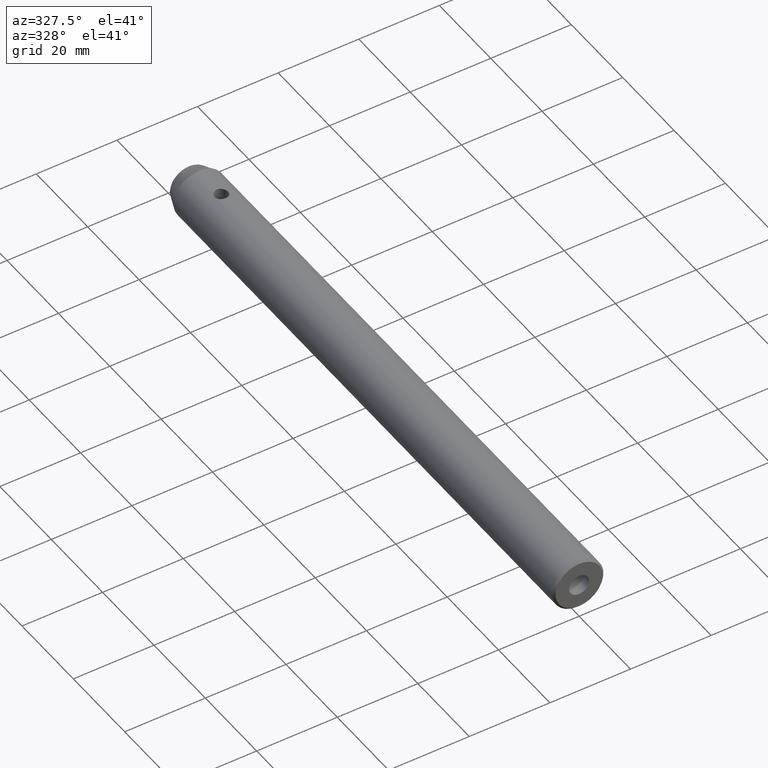
[diagram: clean part render]
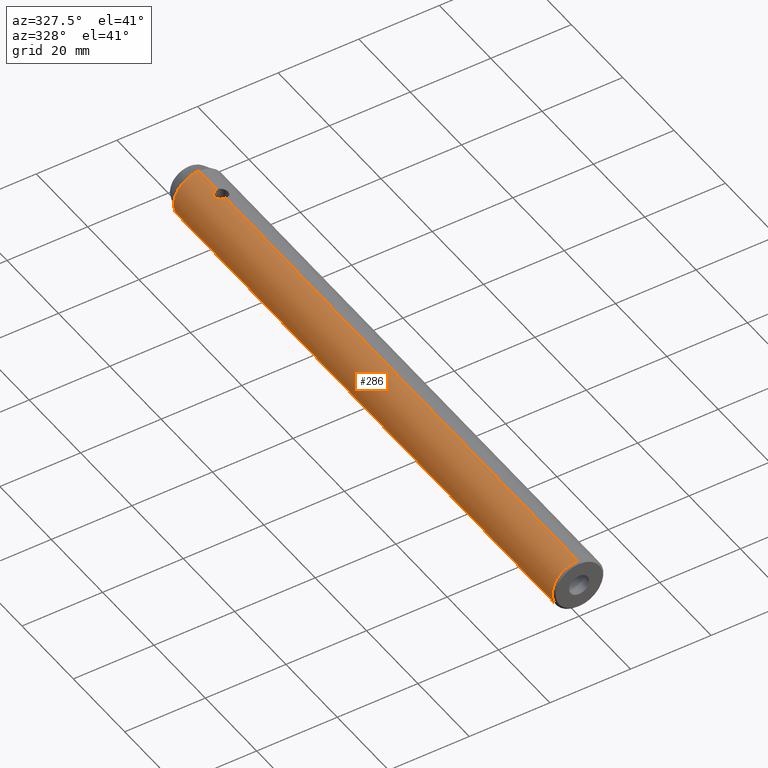
[diagram: same view with one face highlighted and labeled with its STEP entity id]
A machine part, auxiliary view. The second image highlights one B-rep face of the part: STEP entity #286.
In plain terms, the highlighted cylindrical surface (edge-blend (fillet) strip) has radius 6.35 mm, axis along (-0, -1, -0).
Its self-contained STEP definition (entity closure, byte-faithful):
#1 = DIRECTION ( 'NONE',  ( -0.0000000000000000000, -1.000000000000000000, -0.0000000000000000000 ) ) ;
#15 = CARTESIAN_POINT ( 'NONE',  ( -1.650000000000003200, 139.5159074412738400, 6.131883886702358800 ) ) ;
#20 = CARTESIAN_POINT ( 'NONE',  ( -6.974444811417583500E-013, 137.6499999999935300, 6.350000000001686300 ) ) ;
#35 = ORIENTED_EDGE ( 'NONE', *, *, #266, .T. ) ;
#37 = CARTESIAN_POINT ( 'NONE',  ( 7.776507174585692200E-016, 152.0000000000000000, 6.349999999999999600 ) ) ;
#42 = CARTESIAN_POINT ( 'NONE',  ( -1.650000000000003000, 139.1920627159405200, 6.131883886702356200 ) ) ;
#47 = CARTESIAN_POINT ( 'NONE',  ( 7.776507174597243100E-016, 0.4999999999999726900, -6.350000000009431200 ) ) ;
#49 = CARTESIAN_POINT ( 'NONE',  ( -0.8281761633611045600, 140.7311634706439600, -6.296412476666372300 ) ) ;
#50 = EDGE_CURVE ( 'NONE', #493, #484, #801, .T. ) ;
#64 = CARTESIAN_POINT ( 'NONE',  ( -1.007005038130155600, 137.9885294865501400, -6.270292001546161800 ) ) ;
#76 = CARTESIAN_POINT ( 'NONE',  ( -1.482631616215294800, 140.0320397076817200, 6.174634385605513000 ) ) ;
#89 = CARTESIAN_POINT ( 'NONE',  ( -0.1081261642684567500, 137.6500000000001500, 6.349999999999978300 ) ) ;
#91 = LINE ( 'NONE', #124, #613 ) ;
#94 = CARTESIAN_POINT ( 'NONE',  ( -0.2179758374209905000, 137.6608947551608000, 6.347144642644349400 ) ) ;
#95 = CARTESIAN_POINT ( 'NONE',  ( -0.5338866542031250900, 140.8649781437913200, -6.328311955744354100 ) ) ;
#99 = ORIENTED_EDGE ( 'NONE', *, *, #607, .T. ) ;
#108 = CARTESIAN_POINT ( 'NONE',  ( 0.0000000000000000000, 140.9500000000000200, -6.349999999999999600 ) ) ;
#109 = CARTESIAN_POINT ( 'NONE',  ( -1.596663809953354100, 138.8699863015438300, 6.146027032909197300 ) ) ;
#111 = LINE ( 'NONE', #566, #795 ) ;
#113 = ORIENTED_EDGE ( 'NONE', *, *, #281, .T. ) ;
#123 = CARTESIAN_POINT ( 'NONE',  ( -1.639106060326593700, 139.0820324534507800, -6.134844145553196300 ) ) ;
#124 = CARTESIAN_POINT ( 'NONE',  ( 0.0000000000000000000, 152.0000000000000000, -6.349999999999999600 ) ) ;
#126 = CARTESIAN_POINT ( 'NONE',  ( -0.1079389430111871400, 137.6500000000000600, -6.349999999999999600 ) ) ;
#137 = CARTESIAN_POINT ( 'NONE',  ( -1.430937917797910700, 140.1285587685285600, 6.186976712326952600 ) ) ;
#138 = CARTESIAN_POINT ( 'NONE',  ( 7.294888503011075700E-016, 140.9500000000000200, 6.350000000000000500 ) ) ;
#145 = CARTESIAN_POINT ( 'NONE',  ( 2.477007465175872600E-021, 137.6500000000000100, -6.349999999999999600 ) ) ;
#154 = CARTESIAN_POINT ( 'NONE',  ( 0.0000000000000000000, 147.9999999999999100, 0.0000000000000000000 ) ) ;
#156 = CARTESIAN_POINT ( 'NONE',  ( -1.091608024218053900, 140.5419239163841500, -6.255943415907575300 ) ) ;
#161 = CARTESIAN_POINT ( 'NONE',  ( -1.650000000000002800, 139.3000000000000100, 6.131883886702356200 ) ) ;
#163 = CARTESIAN_POINT ( 'NONE',  ( -1.639194538816096000, 139.0825411147130800, 6.134820688103353300 ) ) ;
#165 = CARTESIAN_POINT ( 'NONE',  ( 7.776507174587908900E-016, 147.9999999999999100, 6.350000000001809800 ) ) ;
#166 = DIRECTION ( 'NONE',  ( 0.0000000000000000000, 0.0000000000000000000, -1.000000000000000000 ) ) ;
#169 = DIRECTION ( 'NONE',  ( 0.0000000000000000000, 1.000000000000000000, 0.0000000000000000000 ) ) ;
#174 = ORIENTED_EDGE ( 'NONE', *, *, #363, .T. ) ;
#177 = B_SPLINE_CURVE_WITH_KNOTS ( 'NONE', 3,
 ( #20, #89, #94, #275, #523, #213, #533, #475, #600, #543, #219, #718, #109, #163, #42, #161 ),
 .UNSPECIFIED., .F., .F.,
 ( 4, 2, 2, 2, 2, 2, 2, 4 ),
 ( 0.002591141465369753900, 0.002914863869972949800, 0.003238586274576145600, 0.003886031083782505100, 0.004209753488385656700, 0.004533475892988806500, 0.004857198297591958100, 0.005180920702195108800 ),
 .UNSPECIFIED. ) ;
#182 = DIRECTION ( 'NONE',  ( -0.0000000000000000000, -1.000000000000000000, -0.0000000000000000000 ) ) ;
#184 = CARTESIAN_POINT ( 'NONE',  ( -0.7320081022328510700, 137.8173399076216300, -6.308460464966564100 ) ) ;
#195 = CARTESIAN_POINT ( 'NONE',  ( 0.0000000000000000000, 0.4999999999999726900, 6.350000000009431200 ) ) ;
#202 = CARTESIAN_POINT ( 'NONE',  ( -1.243166558392558400, 140.3902366513591700, 6.227601864458365300 ) ) ;
#203 = CARTESIAN_POINT ( 'NONE',  ( -1.650000000000002800, 139.3000000000000100, 6.131883886702356200 ) ) ;
#213 = CARTESIAN_POINT ( 'NONE',  ( -0.8334608514834981300, 137.8595485784398700, 6.298283451494391700 ) ) ;
#219 = CARTESIAN_POINT ( 'NONE',  ( -1.482696713118847500, 138.5680693405207400, 6.174619057269595100 ) ) ;
#223 = DIRECTION ( 'NONE',  ( -0.0000000000000000000, -1.000000000000000000, -0.0000000000000000000 ) ) ;
#234 = VERTEX_POINT ( 'NONE', #456 ) ;
#264 = CARTESIAN_POINT ( 'NONE',  ( -1.006670063915746900, 140.6117190249441600, 6.270344671252951600 ) ) ;
#266 = EDGE_CURVE ( 'NONE', #586, #493, #177, .T. ) ;
#275 = CARTESIAN_POINT ( 'NONE',  ( -0.4299124293967029900, 137.7033300991097300, 6.336318638089350600 ) ) ;
#276 = ORIENTED_EDGE ( 'NONE', *, *, #356, .T. ) ;
#281 = EDGE_CURVE ( 'NONE', #762, #477, #285, .T. ) ;
#285 = CIRCLE ( 'NONE', #361, 6.349999999999999600 ) ;
#286 = ADVANCED_FACE ( 'NONE', ( #488 ), #761, .T. ) ;
#288 = LINE ( 'NONE', #37, #734 ) ;
#289 = DIRECTION ( 'NONE',  ( -0.0000000000000000000, -1.000000000000000000, -0.0000000000000000000 ) ) ;
#293 = CARTESIAN_POINT ( 'NONE',  ( -0.4287914133757487200, 140.8969589792993400, -6.336391795622864400 ) ) ;
#298 = EDGE_CURVE ( 'NONE', #234, #731, #421, .T. ) ;
#306 = CARTESIAN_POINT ( 'NONE',  ( -1.089807744919475400, 138.0564248973290100, -6.256265502084764000 ) ) ;
#308 = CARTESIAN_POINT ( 'NONE',  ( -1.565319494265557500, 138.7670507932976700, -6.154194663677089700 ) ) ;
#309 = EDGE_CURVE ( 'NONE', #622, #762, #111, .T. ) ;
#312 = LINE ( 'NONE', #404, #433 ) ;
#313 = B_SPLINE_CURVE_WITH_KNOTS ( 'NONE', 3,
 ( #749, #677, #123, #372, #308, #619, #562, #306, #64, #494, #184, #743, #809, #559, #126, #623 ),
 .UNSPECIFIED., .F., .F.,
 ( 4, 2, 2, 2, 2, 2, 2, 4 ),
 ( 0.002591186183972180000, 0.002914909112256928800, 0.003238632040541677600, 0.003886077897111099800, 0.004209800825395780900, 0.004533523753680462900, 0.004857246681965144900, 0.005180969610249826900 ),
 .UNSPECIFIED. ) ;
#355 = CARTESIAN_POINT ( 'NONE',  ( -1.650000000000002800, 139.3000000000000100, -6.131883886702355300 ) ) ;
#356 = EDGE_CURVE ( 'NONE', #407, #234, #91, .T. ) ;
#361 = AXIS2_PLACEMENT_3D ( 'NONE', #541, #169, #166 ) ;
#363 = EDGE_CURVE ( 'NONE', #731, #622, #313, .T. ) ;
#365 = ORIENTED_EDGE ( 'NONE', *, *, #753, .F. ) ;
#370 = AXIS2_PLACEMENT_3D ( 'NONE', #780, #403, #472 ) ;
#372 = CARTESIAN_POINT ( 'NONE',  ( -1.596674049841376500, 138.8701040743258400, -6.146024190140390300 ) ) ;
#383 = CARTESIAN_POINT ( 'NONE',  ( -0.7338662764141519200, 140.7818151694044700, 6.308259141329039600 ) ) ;
#403 = DIRECTION ( 'NONE',  ( -0.0000000000000000000, -1.000000000000000000, -0.0000000000000000000 ) ) ;
#404 = CARTESIAN_POINT ( 'NONE',  ( 7.776507174585692200E-016, 152.0000000000000000, 6.349999999999999600 ) ) ;
#407 = VERTEX_POINT ( 'NONE', #679 ) ;
#417 = CARTESIAN_POINT ( 'NONE',  ( -1.606276605166881300, 139.7342101324050200, -6.144068416708107900 ) ) ;
#419 = ORIENTED_EDGE ( 'NONE', *, *, #50, .T. ) ;
#421 = B_SPLINE_CURVE_WITH_KNOTS ( 'NONE', 3,
 ( #108, #602, #658, #293, #95, #652, #49, #531, #156, #593, #798, #417, #549, #491 ),
 .UNSPECIFIED., .F., .F.,
 ( 4, 2, 2, 2, 2, 2, 4 ),
 ( 7.061901669623489800E-019, 0.0003238982729965084100, 0.0006477965459930161700, 0.0009716948189895236000, 0.001295593091986031300, 0.001943389637979105800, 0.002591186183972180000 ),
 .UNSPECIFIED. ) ;
#430 = ORIENTED_EDGE ( 'NONE', *, *, #298, .T. ) ;
#433 = VECTOR ( 'NONE', #289, 1000.000000000000000 ) ;
#438 = CARTESIAN_POINT ( 'NONE',  ( 7.294888503011075700E-016, 140.9500000000000200, 6.350000000000000500 ) ) ;
#446 = CARTESIAN_POINT ( 'NONE',  ( -1.606407598893469600, 139.7338999865324600, 6.144036120290138600 ) ) ;
#449 = CARTESIAN_POINT ( 'NONE',  ( -0.4324941403480654400, 140.9071068571519700, 6.338471522523560600 ) ) ;
#456 = CARTESIAN_POINT ( 'NONE',  ( 0.0000000000000000000, 140.9500000000000200, -6.349999999999999600 ) ) ;
#463 = DIRECTION ( 'NONE',  ( 0.0000000000000000000, 0.0000000000000000000, -1.000000000000000000 ) ) ;
#472 = DIRECTION ( 'NONE',  ( 0.0000000000000000000, 0.0000000000000000000, -1.000000000000000000 ) ) ;
#475 = CARTESIAN_POINT ( 'NONE',  ( -1.243679195451992600, 138.2103101747223100, 6.227502740258009900 ) ) ;
#477 = VERTEX_POINT ( 'NONE', #195 ) ;
#484 = VERTEX_POINT ( 'NONE', #438 ) ;
#488 = FACE_OUTER_BOUND ( 'NONE', #489, .T. ) ;
#489 = EDGE_LOOP ( 'NONE', ( #686, #99, #276, #430, #174, #561, #113, #365, #35, #419 ) ) ;
#491 = CARTESIAN_POINT ( 'NONE',  ( -1.650000000000002800, 139.3000000000000100, -6.131883886702355300 ) ) ;
#493 = VERTEX_POINT ( 'NONE', #203 ) ;
#494 = CARTESIAN_POINT ( 'NONE',  ( -0.8286652699597891700, 137.8691513270682700, -6.296342970473872900 ) ) ;
#512 = CARTESIAN_POINT ( 'NONE',  ( -0.2176407035929124300, 140.9500000000000200, 6.350000000000000500 ) ) ;
#516 = DIRECTION ( 'NONE',  ( -0.0000000000000000000, -1.000000000000000000, -0.0000000000000000000 ) ) ;
#523 = CARTESIAN_POINT ( 'NONE',  ( -0.5329794259618768600, 137.7346894066323300, 6.328393618295425700 ) ) ;
#525 = CARTESIAN_POINT ( 'NONE',  ( -6.974444811417583500E-013, 137.6499999999935300, 6.350000000001686300 ) ) ;
#531 = CARTESIAN_POINT ( 'NONE',  ( -1.007227712668178800, 140.6113340429113800, -6.270261411513296900 ) ) ;
#533 = CARTESIAN_POINT ( 'NONE',  ( -1.014722202889216000, 137.9811041447413200, 6.270323128471782900 ) ) ;
#541 = CARTESIAN_POINT ( 'NONE',  ( 0.0000000000000000000, 0.4999999999999726900, 0.0000000000000000000 ) ) ;
#543 = CARTESIAN_POINT ( 'NONE',  ( -1.430905329014907200, 138.4714348694415400, 6.186981885573228400 ) ) ;
#549 = CARTESIAN_POINT ( 'NONE',  ( -1.650000000000002800, 139.5163516791064600, -6.131883886702356200 ) ) ;
#559 = CARTESIAN_POINT ( 'NONE',  ( -0.2174510430680579600, 137.6608034736362600, -6.347168056889394400 ) ) ;
#561 = ORIENTED_EDGE ( 'NONE', *, *, #309, .T. ) ;
#562 = CARTESIAN_POINT ( 'NONE',  ( -1.318974542890569500, 138.2853838249439500, -6.213450085826412600 ) ) ;
#566 = CARTESIAN_POINT ( 'NONE',  ( 0.0000000000000000000, 152.0000000000000000, -6.349999999999999600 ) ) ;
#571 = CARTESIAN_POINT ( 'NONE',  ( -1.311126599214327900, 140.3074919346228500, 6.213470141901424900 ) ) ;
#586 = VERTEX_POINT ( 'NONE', #525 ) ;
#593 = CARTESIAN_POINT ( 'NONE',  ( -1.318807138192839900, 140.3144851417088100, -6.213452513582927500 ) ) ;
#600 = CARTESIAN_POINT ( 'NONE',  ( -1.311561287289502400, 138.2931150880741000, 6.213376047101772500 ) ) ;
#602 = CARTESIAN_POINT ( 'NONE',  ( -0.1095553982157425900, 140.9499999999999900, -6.350000000000001400 ) ) ;
#607 = EDGE_CURVE ( 'NONE', #736, #407, #675, .T. ) ;
#613 = VECTOR ( 'NONE', #182, 1000.000000000000000 ) ;
#619 = CARTESIAN_POINT ( 'NONE',  ( -1.440492739491083100, 138.4666209915754400, -6.185048825814479100 ) ) ;
#622 = VERTEX_POINT ( 'NONE', #145 ) ;
#623 = CARTESIAN_POINT ( 'NONE',  ( 2.477007465175872600E-021, 137.6500000000000100, -6.349999999999999600 ) ) ;
#636 = CARTESIAN_POINT ( 'NONE',  ( -1.091037770774665700, 140.5424635329116500, 6.256047047205925100 ) ) ;
#652 = CARTESIAN_POINT ( 'NONE',  ( -0.7335554017690727500, 140.7819203833594800, -6.308285317048412100 ) ) ;
#658 = CARTESIAN_POINT ( 'NONE',  ( -0.2171877504661352300, 140.9391978339410500, -6.347168860592018900 ) ) ;
#675 = CIRCLE ( 'NONE', #808, 6.349999999999999600 ) ;
#677 = CARTESIAN_POINT ( 'NONE',  ( -1.650000000000003000, 139.1918827222329800, -6.131883886702355300 ) ) ;
#679 = CARTESIAN_POINT ( 'NONE',  ( 0.0000000000000000000, 147.9999999999999100, -6.350000000001809800 ) ) ;
#686 = ORIENTED_EDGE ( 'NONE', *, *, #788, .F. ) ;
#718 = CARTESIAN_POINT ( 'NONE',  ( -1.565299065599911100, 138.7671295949190300, 6.154197663442601200 ) ) ;
#731 = VERTEX_POINT ( 'NONE', #355 ) ;
#734 = VECTOR ( 'NONE', #223, 1000.000000000000000 ) ;
#736 = VERTEX_POINT ( 'NONE', #165 ) ;
#743 = CARTESIAN_POINT ( 'NONE',  ( -0.5329100739983845300, 137.7347129131379400, -6.328389696661525400 ) ) ;
#749 = CARTESIAN_POINT ( 'NONE',  ( -1.650000000000002800, 139.3000000000000100, -6.131883886702355300 ) ) ;
#753 = EDGE_CURVE ( 'NONE', #586, #477, #312, .T. ) ;
#759 = CARTESIAN_POINT ( 'NONE',  ( -1.650000000000002800, 139.3000000000000100, 6.131883886702356200 ) ) ;
#761 = CYLINDRICAL_SURFACE ( 'NONE', #370, 6.349999999999999600 ) ;
#762 = VERTEX_POINT ( 'NONE', #47 ) ;
#763 = CARTESIAN_POINT ( 'NONE',  ( -0.8284832080373338800, 140.7309461876621100, 6.296365815920688100 ) ) ;
#780 = CARTESIAN_POINT ( 'NONE',  ( 0.0000000000000000000, 152.0000000000000000, 0.0000000000000000000 ) ) ;
#788 = EDGE_CURVE ( 'NONE', #736, #484, #288, .T. ) ;
#795 = VECTOR ( 'NONE', #1, 1000.000000000000000 ) ;
#798 = CARTESIAN_POINT ( 'NONE',  ( -1.441516095265473100, 140.1310802118208900, -6.184798508325644500 ) ) ;
#801 = B_SPLINE_CURVE_WITH_KNOTS ( 'NONE', 3,
 ( #759, #15, #446, #76, #137, #571, #202, #636, #264, #763, #383, #449, #512, #138 ),
 .UNSPECIFIED., .F., .F.,
 ( 4, 2, 2, 2, 2, 2, 4 ),
 ( 0.005180920702195108800, 0.005828464103624113000, 0.006152235804338614600, 0.006476007505053117200, 0.006799779205767618800, 0.007123550906482120500, 0.007771094307911123800 ),
 .UNSPECIFIED. ) ;
#808 = AXIS2_PLACEMENT_3D ( 'NONE', #154, #516, #463 ) ;
#809 = CARTESIAN_POINT ( 'NONE',  ( -0.4300337873983617300, 137.7033406281019000, -6.336315825479685400 ) ) ;